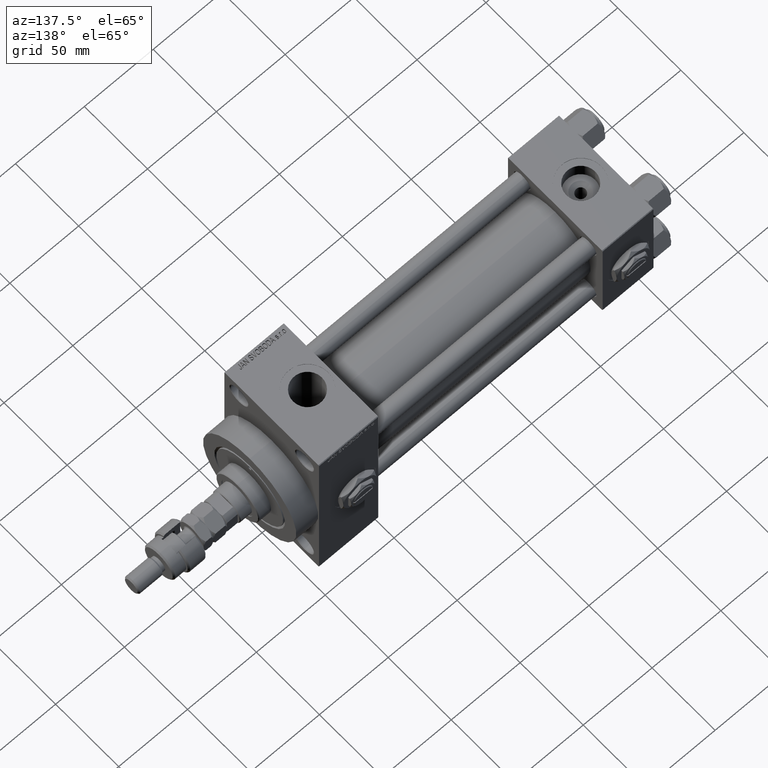
[diagram: clean part render]
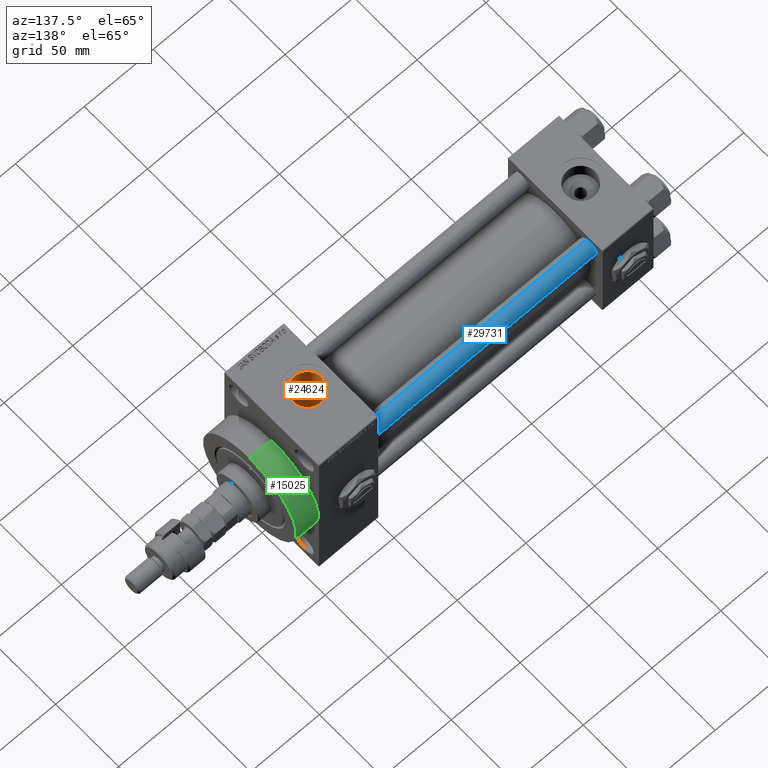
[diagram: same view with three faces highlighted in distinct colors, each labeled with its STEP entity id]
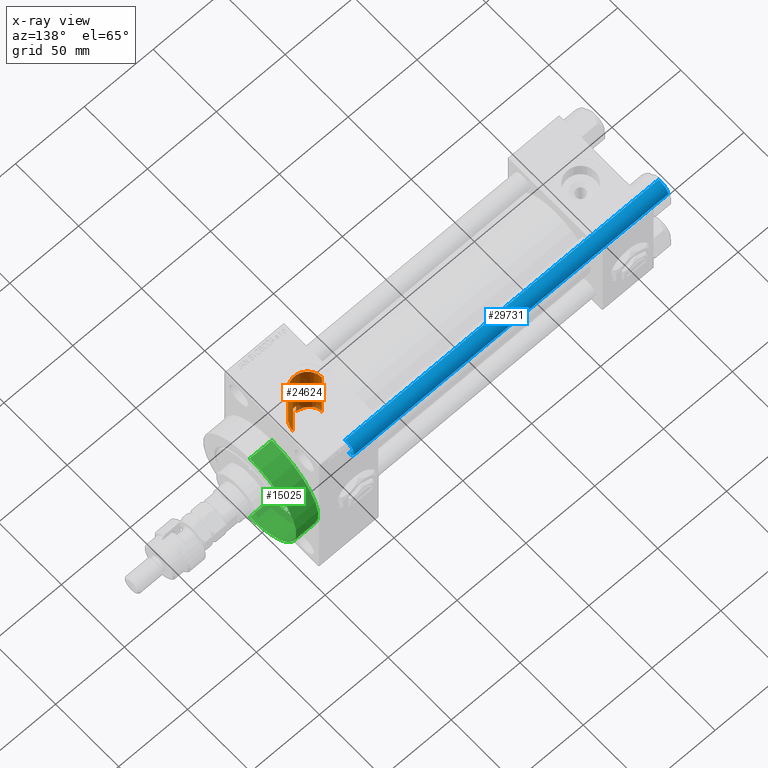
[diagram: x-ray of the same camera — body ghosted, the three highlighted faces saturated]
A machine part, auxiliary view with three faces highlighted in distinct colors.
The next image is the same camera in x-ray (body ghosted, the three faces saturated) — at least one of them is partly hidden behind the body in this view.
Their STEP definitions:

[orange] entity #24624 — the highlighted cylindrical surface (edge-blend (fillet) strip) has radius 10.48 mm, axis along (0, 0, -1).
#88 = CARTESIAN_POINT ( 'NONE',  ( 225.8553297434206684, -5.616857363200520759, 25.89992295911059017 ) ) ;
#198 = VERTEX_POINT ( 'NONE', #24987 ) ;
#350 = CARTESIAN_POINT ( 'NONE',  ( 227.1654842721633827, -2.575241489874377621, 26.37710048711163324 ) ) ;
#441 = CIRCLE ( 'NONE', #33403, 10.47999999999998977 ) ;
#1581 = CARTESIAN_POINT ( 'NONE',  ( 216.4868983507927567, -10.49443499905853727, 24.33364968799252992 ) ) ;
#2257 = CARTESIAN_POINT ( 'NONE',  ( 209.5858530633664145, -7.432843903534906538, 19.11142359022019477 ) ) ;
#2837 = EDGE_CURVE ( 'NONE', #18559, #29049, #35903, .T. ) ;
#3114 = DIRECTION ( 'NONE',  ( -0.000000000000000000, -0.000000000000000000, 1.000000000000000000 ) ) ;
#4056 = ORIENTED_EDGE ( 'NONE', *, *, #30603, .F. ) ;
#5557 = CARTESIAN_POINT ( 'NONE',  ( 221.8603660912150417, -9.291949300782555099, 24.81826977973610937 ) ) ;
#5814 = CARTESIAN_POINT ( 'NONE',  ( 220.8600678267364117, -9.750145953289937495, 24.64162310621549068 ) ) ;
#6229 = CARTESIAN_POINT ( 'NONE',  ( 212.3860343387702869, -9.414895611962208477, 18.21089574232529529 ) ) ;
#6497 = CARTESIAN_POINT ( 'NONE',  ( 215.7400000000000091, -10.40398000767013720, 17.66372554134603234 ) ) ;
#8560 = CARTESIAN_POINT ( 'NONE',  ( 221.5335921408433535, -9.455792512420348572, 24.75606841526506230 ) ) ;
#8939 = VERTEX_POINT ( 'NONE', #39115 ) ;
#8970 = ORIENTED_EDGE ( 'NONE', *, *, #43753, .T. ) ;
#11110 = ORIENTED_EDGE ( 'NONE', *, *, #24852, .F. ) ;
#11902 = CARTESIAN_POINT ( 'NONE',  ( 217.0000000000000284, -1.184237892933500047E-14, 86.79999999999995453 ) ) ;
#12162 = DIRECTION ( 'NONE',  ( 0.000000000000000000, 0.000000000000000000, -1.000000000000000000 ) ) ;
#12267 = AXIS2_PLACEMENT_3D ( 'NONE', #11902, #12162, #28279 ) ;
#12274 = CARTESIAN_POINT ( 'NONE',  ( 222.8022832347253654, -8.734885810677008422, 25.02004257437573997 ) ) ;
#13120 = VERTEX_POINT ( 'NONE', #34190 ) ;
#13511 = CARTESIAN_POINT ( 'NONE',  ( 224.5076201536012093, -7.348534936426559305, 25.46581292754184034 ) ) ;
#13774 = CARTESIAN_POINT ( 'NONE',  ( 220.5115735695664796, -9.881194972351272199, 24.58915736193083390 ) ) ;
#14178 = CARTESIAN_POINT ( 'NONE',  ( 208.3953798552083754, -5.990768218169443493, 19.60690346560341624 ) ) ;
#14268 = VERTEX_POINT ( 'NONE', #40135 ) ;
#14324 = LINE ( 'NONE', #51612, #18282 ) ;
#14837 = EDGE_CURVE ( 'NONE', #14268, #198, #19955, .T. ) ;
#15028 = DIRECTION ( 'NONE',  ( -0.000000000000000000, -0.000000000000000000, -1.000000000000000000 ) ) ;
#15216 = CARTESIAN_POINT ( 'NONE',  ( 206.8301889492347527, -2.551161066698723889, 20.34303009823682018 ) ) ;
#15287 = CARTESIAN_POINT ( 'NONE',  ( 217.0000000000000284, -1.184237892933500047E-14, 63.79999999999996874 ) ) ;
#17465 = CARTESIAN_POINT ( 'NONE',  ( 227.4800000000001887, 1.369086091260426415E-14, 26.50000000000006750 ) ) ;
#18130 = CARTESIAN_POINT ( 'NONE',  ( 210.0381797508610759, -7.858608369745931022, 18.93862270061622510 ) ) ;
#18282 = VECTOR ( 'NONE', #30441, 1000.000000000000000 ) ;
#18387 = CARTESIAN_POINT ( 'NONE',  ( 208.7690786171585557, -6.494668957650275409, 19.44580269579670784 ) ) ;
#18559 = VERTEX_POINT ( 'NONE', #29378 ) ;
#18651 = CARTESIAN_POINT ( 'NONE',  ( 212.6712488263176226, -9.549519568135618641, 18.14045042009997033 ) ) ;
#18915 = CARTESIAN_POINT ( 'NONE',  ( 206.7557754428708847, -2.233872855162164495, 20.38041083426450939 ) ) ;
#19824 = CYLINDRICAL_SURFACE ( 'NONE', #12267, 10.47999999999998977 ) ;
#19955 = LINE ( 'NONE', #27383, #28749 ) ;
#20342 = FACE_OUTER_BOUND ( 'NONE', #30809, .T. ) ;
#20451 = CARTESIAN_POINT ( 'NONE',  ( 222.4947120380321337, -8.931495953537153198, 24.95025484238638924 ) ) ;
#20717 = CARTESIAN_POINT ( 'NONE',  ( 226.2276638786152034, -4.981583166679976138, 26.02957788900645397 ) ) ;
#21690 = CARTESIAN_POINT ( 'NONE',  ( 218.7216423275559691, -10.36418010715237159, 24.38933169417625280 ) ) ;
#22631 = CARTESIAN_POINT ( 'NONE',  ( 214.4743138489851901, -10.19113621709991513, 17.78872259750078300 ) ) ;
#23412 = CARTESIAN_POINT ( 'NONE',  ( 211.0263084910633040, -8.633636339713333996, 18.59810417378390213 ) ) ;
#24624 = ADVANCED_FACE ( 'NONE', ( #20342 ), #19824, .F. ) ;
#24852 = EDGE_CURVE ( 'NONE', #14268, #8939, #441, .T. ) ;
#24987 = CARTESIAN_POINT ( 'NONE',  ( 227.4800000000001887, 1.369086091260426415E-14, 26.50000000000006750 ) ) ;
#25920 = CARTESIAN_POINT ( 'NONE',  ( 226.6993435614955388, -3.985990130492295780, 26.20070574291653642 ) ) ;
#26325 = CARTESIAN_POINT ( 'NONE',  ( 215.0989953179742713, -10.32634953368259367, 17.70945009121304281 ) ) ;
#27383 = CARTESIAN_POINT ( 'NONE',  ( 227.4800000000000182, -1.055894908382857656E-14, 86.79999999999995453 ) ) ;
#28279 = DIRECTION ( 'NONE',  ( -1.000000000000000000, 0.000000000000000000, 0.000000000000000000 ) ) ;
#28749 = VECTOR ( 'NONE', #36104, 1000.000000000000000 ) ;
#29049 = VERTEX_POINT ( 'NONE', #29725 ) ;
#29378 = CARTESIAN_POINT ( 'NONE',  ( 215.7400000000000091, -10.40398000767013720, 17.66372554134603234 ) ) ;
#29622 = CARTESIAN_POINT ( 'NONE',  ( 223.6874981071936759, -8.077221093107581851, 25.24030799844106099 ) ) ;
#29725 = CARTESIAN_POINT ( 'NONE',  ( 215.7400000000000091, -10.40398000767013720, 24.37226292324945831 ) ) ;
#30283 = CARTESIAN_POINT ( 'NONE',  ( 207.7251524828654681, -4.919883431204969071, 19.90870771860741328 ) ) ;
#30441 = DIRECTION ( 'NONE',  ( 0.000000000000000000, 0.000000000000000000, -1.000000000000000000 ) ) ;
#30603 = EDGE_CURVE ( 'NONE', #8939, #13120, #14324, .T. ) ;
#30809 = EDGE_LOOP ( 'NONE', ( #11110, #50557, #8970, #31290, #33880, #4056 ) ) ;
#30813 = CARTESIAN_POINT ( 'NONE',  ( 206.5788755912575994, -1.283068547344818677, 20.46971103676261450 ) ) ;
#31145 = B_SPLINE_CURVE_WITH_KNOTS ( 'NONE', 3,
 ( #17465, #42067, #44534, #350, #44790, #33611, #25920, #50271, #20717, #88, #48511, #34141, #13511, #29622, #45771, #12274, #20451, #5557, #8560, #5814, #13774, #48774, #21690, #37834, #1581, #36597 ),
 .UNSPECIFIED., .F., .F.,
 ( 4, 2, 2, 2, 2, 2, 2, 2, 2, 2, 2, 2, 4 ),
 ( 0.01781170071191074539, 0.02003745927526344797, 0.02115033855693980100, 0.02226321783861615056, 0.02337609712029250358, 0.02448897640196885661, 0.02671473496532155573, 0.02782761424699790875, 0.02894049352867426178, 0.03005337281035061481, 0.03116625209202696437, 0.03339201065537959756, 0.03561776921873222035 ),
 .UNSPECIFIED. ) ;
#31290 = ORIENTED_EDGE ( 'NONE', *, *, #2837, .F. ) ;
#33403 = AXIS2_PLACEMENT_3D ( 'NONE', #15287, #15028, #43331 ) ;
#33611 = CARTESIAN_POINT ( 'NONE',  ( 226.8335546017134732, -3.642695553053292290, 26.25084325021122567 ) ) ;
#33880 = ORIENTED_EDGE ( 'NONE', *, *, #48883, .T. ) ;
#34141 = CARTESIAN_POINT ( 'NONE',  ( 224.9981355541605694, -6.811571481472494582, 25.61680511670813232 ) ) ;
#34190 = CARTESIAN_POINT ( 'NONE',  ( 206.5200000000000387, 2.510525899703770247E-15, 20.50000000000000000 ) ) ;
#34801 = CARTESIAN_POINT ( 'NONE',  ( 207.1063378233203309, -3.470716205836929635, 20.20629303502188634 ) ) ;
#35521 = VECTOR ( 'NONE', #3114, 1000.000000000000000 ) ;
#35903 = LINE ( 'NONE', #38816, #35521 ) ;
#36104 = DIRECTION ( 'NONE',  ( 0.000000000000000000, 0.000000000000000000, -1.000000000000000000 ) ) ;
#36597 = CARTESIAN_POINT ( 'NONE',  ( 215.7400000000000091, -10.40398000767013720, 24.37226292324945831 ) ) ;
#37834 = CARTESIAN_POINT ( 'NONE',  ( 217.2451057705677329, -10.50334255171940079, 24.32972513250578572 ) ) ;
#38501 = CARTESIAN_POINT ( 'NONE',  ( 211.5531845509291884, -8.975341525110605900, 18.43369678050424199 ) ) ;
#38816 = CARTESIAN_POINT ( 'NONE',  ( 215.7400000000000091, -10.40398000767013720, 86.79999999999995453 ) ) ;
#39115 = CARTESIAN_POINT ( 'NONE',  ( 206.5200000000000387, -1.184237892933500047E-14, 63.79999999999996874 ) ) ;
#39289 = CARTESIAN_POINT ( 'NONE',  ( 208.2177924678372847, -5.727359184013972815, 19.68566307691175155 ) ) ;
#40135 = CARTESIAN_POINT ( 'NONE',  ( 227.4800000000000182, -1.055894908382857656E-14, 63.79999999999996874 ) ) ;
#42067 = CARTESIAN_POINT ( 'NONE',  ( 227.4800000000000182, -0.7466733969459942166, 26.50000000000000711 ) ) ;
#42472 = CARTESIAN_POINT ( 'NONE',  ( 213.2578787675115564, -9.794280953047078242, 18.00947878310445915 ) ) ;
#43331 = DIRECTION ( 'NONE',  ( 1.000000000000000000, 0.000000000000000000, 0.000000000000000000 ) ) ;
#43753 = EDGE_CURVE ( 'NONE', #198, #29049, #31145, .T. ) ;
#44534 = CARTESIAN_POINT ( 'NONE',  ( 227.4011065554137474, -1.483758503940589613, 26.46850309434598003 ) ) ;
#44790 = CARTESIAN_POINT ( 'NONE',  ( 227.0665133812163106, -2.938253791439166207, 26.33899517628734444 ) ) ;
#45770 = B_SPLINE_CURVE_WITH_KNOTS ( 'NONE', 3,
 ( #6497, #26325, #22631, #46975, #42472, #18651, #6229, #38501, #23412, #18130, #2257, #50415, #18387, #14178, #39289, #30283, #50675, #34801, #50937, #15216, #18915, #30813, #46439, #51196 ),
 .UNSPECIFIED., .F., .F.,
 ( 4, 2, 2, 2, 2, 2, 2, 2, 2, 2, 2, 4 ),
 ( 0.01794441051450875596, 0.01987210289621882398, 0.02083594908707385798, 0.02179979527792889546, 0.02372748765963889062, 0.02565518004134888924, 0.02661902623220386427, 0.02758287242305883583, 0.02951056480476877547, 0.03047441099562375050, 0.03143825718647871859, 0.03336594956818868252 ),
 .UNSPECIFIED. ) ;
#45771 = CARTESIAN_POINT ( 'NONE',  ( 223.3983008714430696, -8.308216825530752914, 25.16494175890555240 ) ) ;
#46439 = CARTESIAN_POINT ( 'NONE',  ( 206.5200000000000671, -0.6440971456680799623, 20.50000000000000000 ) ) ;
#46975 = CARTESIAN_POINT ( 'NONE',  ( 213.5601267213962444, -9.904527187573155089, 17.94888070193249519 ) ) ;
#48511 = CARTESIAN_POINT ( 'NONE',  ( 225.6508763872861323, -5.926808359427520934, 25.83050513016099714 ) ) ;
#48774 = CARTESIAN_POINT ( 'NONE',  ( 219.4459359432479459, -10.21777125531390240, 24.45211332338677934 ) ) ;
#48883 = EDGE_CURVE ( 'NONE', #18559, #13120, #45770, .T. ) ;
#50271 = CARTESIAN_POINT ( 'NONE',  ( 226.3963988635402984, -4.655434592126350246, 26.09007526830297863 ) ) ;
#50415 = CARTESIAN_POINT ( 'NONE',  ( 208.9658951235677478, -6.736478654131065724, 19.36312927646823923 ) ) ;
#50557 = ORIENTED_EDGE ( 'NONE', *, *, #14837, .T. ) ;
#50675 = CARTESIAN_POINT ( 'NONE',  ( 207.4472730664948017, -4.356133276745589811, 20.04082582304832627 ) ) ;
#50937 = CARTESIAN_POINT ( 'NONE',  ( 207.0054261414356631, -3.168907222089405895, 20.25599475177158482 ) ) ;
#51196 = CARTESIAN_POINT ( 'NONE',  ( 206.5200000000000387, 2.510525899703770247E-15, 20.50000000000000000 ) ) ;
#51612 = CARTESIAN_POINT ( 'NONE',  ( 206.5200000000000387, -1.184237892933500047E-14, 86.79999999999995453 ) ) ;

[blue] entity #29731 — the highlighted cylindrical surface (edge-blend (fillet) strip) has radius 6 mm, axis along (-1, -0, 0).
#686 = ORIENTED_EDGE ( 'NONE', *, *, #6012, .T. ) ;
#2163 = CARTESIAN_POINT ( 'NONE',  ( 0.000000000000000000, 0.000000000000000000, 228.5000000000001137 ) ) ;
#2206 = AXIS2_PLACEMENT_3D ( 'NONE', #36716, #25054, #16350 ) ;
#2643 = CIRCLE ( 'NONE', #20382, 6.000000000000000888 ) ;
#3460 = EDGE_LOOP ( 'NONE', ( #28190, #50190, #686, #31354 ) ) ;
#4444 = VERTEX_POINT ( 'NONE', #16589 ) ;
#5924 = AXIS2_PLACEMENT_3D ( 'NONE', #51249, #30077, #42263 ) ;
#6012 = EDGE_CURVE ( 'NONE', #4444, #40549, #9340, .T. ) ;
#8402 = VERTEX_POINT ( 'NONE', #37473 ) ;
#8454 = EDGE_CURVE ( 'NONE', #34326, #4444, #14722, .T. ) ;
#9340 = CIRCLE ( 'NONE', #5924, 6.000000000000000888 ) ;
#13231 = EDGE_CURVE ( 'NONE', #8402, #34326, #2643, .T. ) ;
#14722 = LINE ( 'NONE', #22915, #40292 ) ;
#15851 = CARTESIAN_POINT ( 'NONE',  ( -6.000000000000000888, 0.000000000000000000, 229.0000000000000000 ) ) ;
#16350 = DIRECTION ( 'NONE',  ( -1.000000000000000000, 0.000000000000000000, 0.000000000000000000 ) ) ;
#16589 = CARTESIAN_POINT ( 'NONE',  ( 6.000000000000000888, 7.347880794884119736E-16, 0.5000000000001392220 ) ) ;
#18294 = DIRECTION ( 'NONE',  ( 1.000000000000000000, 0.000000000000000000, 0.000000000000000000 ) ) ;
#19087 = DIRECTION ( 'NONE',  ( 0.000000000000000000, 0.000000000000000000, -1.000000000000000000 ) ) ;
#20382 = AXIS2_PLACEMENT_3D ( 'NONE', #2163, #19087, #18294 ) ;
#21348 = CYLINDRICAL_SURFACE ( 'NONE', #2206, 6.000000000000000888 ) ;
#22915 = CARTESIAN_POINT ( 'NONE',  ( 6.000000000000000888, 7.347880794884119736E-16, 229.0000000000000000 ) ) ;
#24860 = CARTESIAN_POINT ( 'NONE',  ( -6.000000000000000888, 0.000000000000000000, 0.5000000000001392220 ) ) ;
#25054 = DIRECTION ( 'NONE',  ( -0.000000000000000000, -0.000000000000000000, -1.000000000000000000 ) ) ;
#27056 = VECTOR ( 'NONE', #43113, 1000.000000000000000 ) ;
#28190 = ORIENTED_EDGE ( 'NONE', *, *, #13231, .T. ) ;
#29731 = ADVANCED_FACE ( 'NONE', ( #32998 ), #21348, .T. ) ;
#30077 = DIRECTION ( 'NONE',  ( -0.000000000000000000, -0.000000000000000000, 1.000000000000000000 ) ) ;
#31354 = ORIENTED_EDGE ( 'NONE', *, *, #34650, .F. ) ;
#32026 = CARTESIAN_POINT ( 'NONE',  ( 6.000000000000000888, 7.347880794884119736E-16, 228.5000000000001137 ) ) ;
#32998 = FACE_OUTER_BOUND ( 'NONE', #3460, .T. ) ;
#34326 = VERTEX_POINT ( 'NONE', #32026 ) ;
#34650 = EDGE_CURVE ( 'NONE', #8402, #40549, #35175, .T. ) ;
#35175 = LINE ( 'NONE', #15851, #27056 ) ;
#36716 = CARTESIAN_POINT ( 'NONE',  ( 0.000000000000000000, 0.000000000000000000, 229.0000000000000000 ) ) ;
#37473 = CARTESIAN_POINT ( 'NONE',  ( -6.000000000000000888, 0.000000000000000000, 228.5000000000001137 ) ) ;
#40292 = VECTOR ( 'NONE', #50437, 1000.000000000000000 ) ;
#40549 = VERTEX_POINT ( 'NONE', #24860 ) ;
#42263 = DIRECTION ( 'NONE',  ( 1.000000000000000000, 0.000000000000000000, 0.000000000000000000 ) ) ;
#43113 = DIRECTION ( 'NONE',  ( -0.000000000000000000, -0.000000000000000000, -1.000000000000000000 ) ) ;
#50190 = ORIENTED_EDGE ( 'NONE', *, *, #8454, .T. ) ;
#50437 = DIRECTION ( 'NONE',  ( -0.000000000000000000, -0.000000000000000000, -1.000000000000000000 ) ) ;
#51249 = CARTESIAN_POINT ( 'NONE',  ( 0.000000000000000000, 0.000000000000000000, 0.5000000000001392220 ) ) ;

[green] entity #15025 — the highlighted cylindrical surface (partial cylindrical patch) has radius 37 mm, axis along (-1, -0, -0).
#1200 = DIRECTION ( 'NONE',  ( 1.000000000000000000, 0.000000000000000000, 0.000000000000000000 ) ) ;
#1665 = DIRECTION ( 'NONE',  ( 0.000000000000000000, 0.000000000000000000, 1.000000000000000000 ) ) ;
#2771 = EDGE_CURVE ( 'NONE', #3151, #33728, #6030, .T. ) ;
#2922 = FACE_OUTER_BOUND ( 'NONE', #51778, .T. ) ;
#3151 = VERTEX_POINT ( 'NONE', #37324 ) ;
#5122 = CIRCLE ( 'NONE', #40601, 37.00000000000000000 ) ;
#5377 = CIRCLE ( 'NONE', #44247, 37.00000000000000000 ) ;
#5642 = DIRECTION ( 'NONE',  ( -1.000000000000000000, -0.000000000000000000, -0.000000000000000000 ) ) ;
#6030 = LINE ( 'NONE', #13718, #12710 ) ;
#6259 = CARTESIAN_POINT ( 'NONE',  ( 243.0000000000000000, 0.000000000000000000, 37.00000000000000000 ) ) ;
#7497 = CARTESIAN_POINT ( 'NONE',  ( 259.0000000000000000, 4.531193156845206793E-15, -37.00000000000000000 ) ) ;
#12710 = VECTOR ( 'NONE', #46506, 1000.000000000000000 ) ;
#13718 = CARTESIAN_POINT ( 'NONE',  ( 259.0000000000000000, 0.000000000000000000, 37.00000000000000000 ) ) ;
#14018 = CARTESIAN_POINT ( 'NONE',  ( 259.0000000000000000, 0.000000000000000000, 0.000000000000000000 ) ) ;
#14143 = ORIENTED_EDGE ( 'NONE', *, *, #22370, .F. ) ;
#15025 = ADVANCED_FACE ( 'NONE', ( #2922 ), #45857, .T. ) ;
#17547 = CARTESIAN_POINT ( 'NONE',  ( 259.0000000000000000, 0.000000000000000000, 0.000000000000000000 ) ) ;
#22370 = EDGE_CURVE ( 'NONE', #33193, #3151, #5377, .T. ) ;
#23834 = VECTOR ( 'NONE', #47197, 1000.000000000000000 ) ;
#24770 = VERTEX_POINT ( 'NONE', #42803 ) ;
#27963 = ORIENTED_EDGE ( 'NONE', *, *, #36120, .T. ) ;
#30128 = DIRECTION ( 'NONE',  ( 1.000000000000000000, 0.000000000000000000, 0.000000000000000000 ) ) ;
#33193 = VERTEX_POINT ( 'NONE', #48320 ) ;
#33728 = VERTEX_POINT ( 'NONE', #6259 ) ;
#36120 = EDGE_CURVE ( 'NONE', #24770, #33728, #5122, .T. ) ;
#37324 = CARTESIAN_POINT ( 'NONE',  ( 259.0000000000000000, 0.000000000000000000, 37.00000000000000000 ) ) ;
#38839 = EDGE_CURVE ( 'NONE', #33193, #24770, #51677, .T. ) ;
#40601 = AXIS2_PLACEMENT_3D ( 'NONE', #50412, #1200, #45394 ) ;
#42803 = CARTESIAN_POINT ( 'NONE',  ( 243.0000000000000000, 4.531193156845206793E-15, -37.00000000000000000 ) ) ;
#44247 = AXIS2_PLACEMENT_3D ( 'NONE', #14018, #30128, #49729 ) ;
#45394 = DIRECTION ( 'NONE',  ( 0.000000000000000000, 0.000000000000000000, -1.000000000000000000 ) ) ;
#45857 = CYLINDRICAL_SURFACE ( 'NONE', #46521, 37.00000000000000000 ) ;
#46506 = DIRECTION ( 'NONE',  ( -1.000000000000000000, -0.000000000000000000, -0.000000000000000000 ) ) ;
#46521 = AXIS2_PLACEMENT_3D ( 'NONE', #17547, #5642, #1665 ) ;
#47197 = DIRECTION ( 'NONE',  ( -1.000000000000000000, -0.000000000000000000, -0.000000000000000000 ) ) ;
#48320 = CARTESIAN_POINT ( 'NONE',  ( 259.0000000000000000, 4.531193156845206793E-15, -37.00000000000000000 ) ) ;
#49729 = DIRECTION ( 'NONE',  ( 0.000000000000000000, 0.000000000000000000, -1.000000000000000000 ) ) ;
#49909 = ORIENTED_EDGE ( 'NONE', *, *, #2771, .F. ) ;
#50412 = CARTESIAN_POINT ( 'NONE',  ( 243.0000000000000000, 0.000000000000000000, 0.000000000000000000 ) ) ;
#51677 = LINE ( 'NONE', #7497, #23834 ) ;
#51687 = ORIENTED_EDGE ( 'NONE', *, *, #38839, .T. ) ;
#51778 = EDGE_LOOP ( 'NONE', ( #14143, #51687, #27963, #49909 ) ) ;